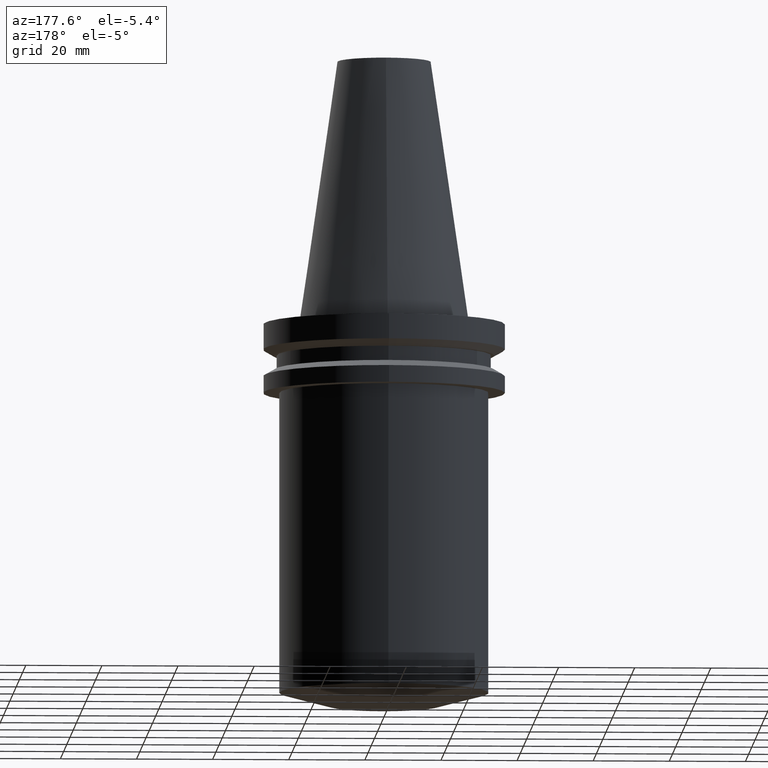
[diagram: clean part render]
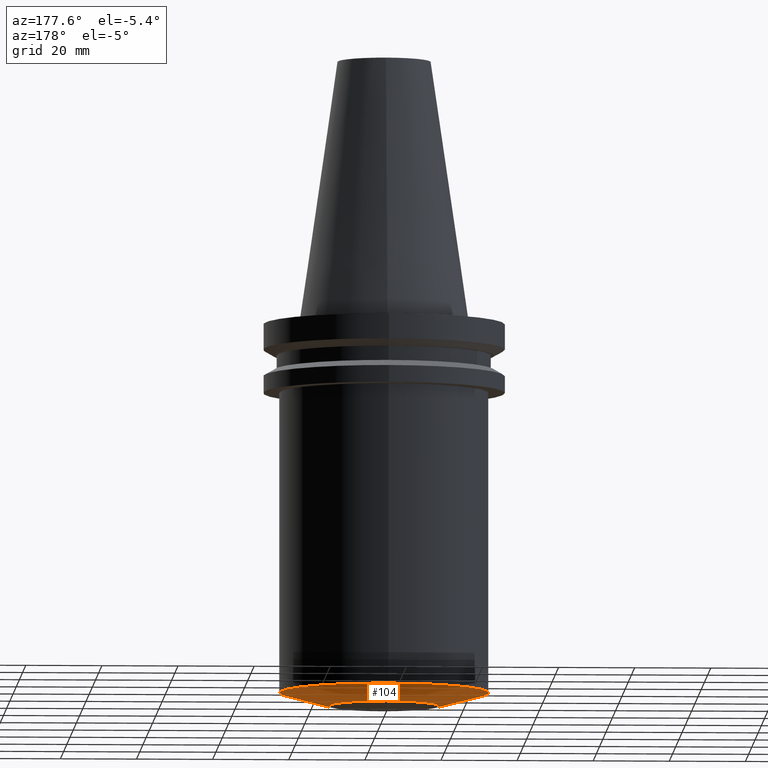
[diagram: same view with one face highlighted and labeled with its STEP entity id]
A machine part, auxiliary view. The second image highlights one B-rep face of the part: STEP entity #104.
In plain terms, the highlighted conical surface has half-angle 75 deg.
Its self-contained STEP definition (entity closure, byte-faithful):
#64=EDGE_CURVE('Unnamed[1]',#162,#162,#163,.T.);
#95=EDGE_CURVE('Unnamed[1]',#210,#210,#211,.T.);
#104=ADVANCED_FACE('Unnamed[1]',(#224,#225),#226,.T.);
#162=VERTEX_POINT('',#291);
#163=CIRCLE('',#292,27.4999999999247);
#210=VERTEX_POINT('',#351);
#211=CIRCLE('',#352,14.4999999999969);
#224=FACE_BOUND('',#368,.T.);
#225=FACE_BOUND('',#369,.T.);
#226=CONICAL_SURFACE('',#370,20.9999999999608,1.30899693899575);
#291=CARTESIAN_POINT('',(6.00791271112047E-015,27.4999999999247,-98.1166604984134));
#292=AXIS2_PLACEMENT_3D('',#435,#436,#437);
#351=CARTESIAN_POINT('',(6.22120573966847E-015,14.4999999999969,-101.599999999999));
#352=AXIS2_PLACEMENT_3D('',#490,#491,#492);
#368=EDGE_LOOP('',(#506));
#369=EDGE_LOOP('',(#507));
#370=AXIS2_PLACEMENT_3D('',#508,#509,#510);
#435=CARTESIAN_POINT('',(6.00791271112047E-015,1.20158254222409E-014,-98.1166604984134));
#436=DIRECTION('',(6.12323399573677E-017,1.22464679914735E-016,-1.0));
#437=DIRECTION('',(-1.23259516440783E-032,1.0,1.22464679914735E-016));
#490=CARTESIAN_POINT('',(6.22120573966847E-015,1.24424114793369E-014,-101.599999999999));
#491=DIRECTION('',(6.12323399573677E-017,1.22464679914735E-016,-1.0));
#492=DIRECTION('',(-1.23259516440783E-032,1.0,1.22464679914735E-016));
#506=ORIENTED_EDGE('',*,*,#95,.F.);
#507=ORIENTED_EDGE('',*,*,#64,.T.);
#508=CARTESIAN_POINT('',(6.11455922539447E-015,1.22291184507889E-014,-99.858330249206));
#509=DIRECTION('',(-6.12323399573677E-017,-1.22464679914735E-016,1.0));
#510=DIRECTION('',(-1.23259516440783E-032,1.0,1.22464679914735E-016));